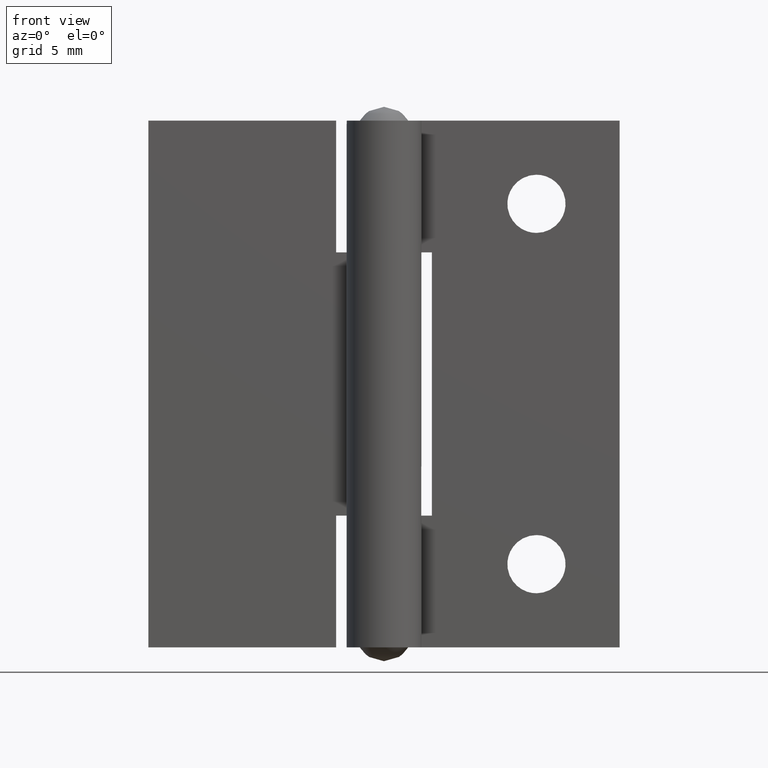
[diagram: clean part render]
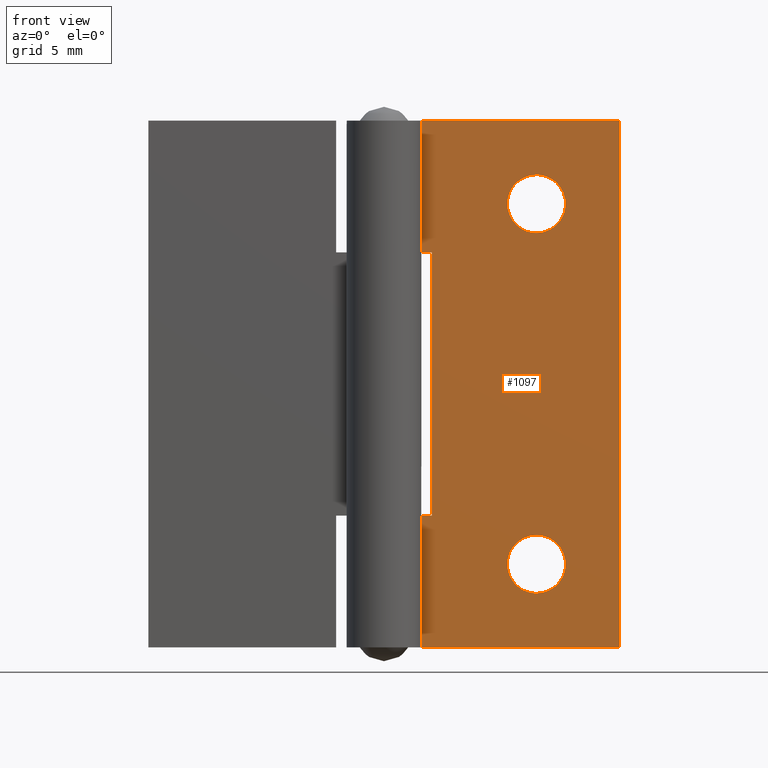
[diagram: same view with one face highlighted and labeled with its STEP entity id]
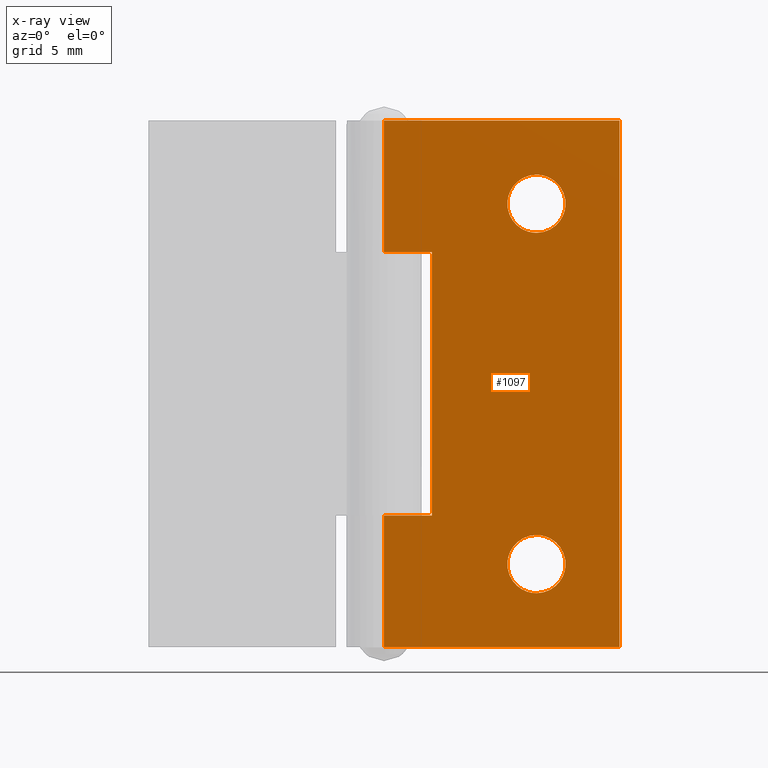
[diagram: x-ray of the same camera — body ghosted, the highlighted face saturated]
A machine part, front view. The second image highlights one B-rep face of the part: STEP entity #1097.
The next image is the same camera in x-ray: the body ghosted, the highlighted face saturated — about 0% of this face is hidden behind the body in this view.
In plain terms, the highlighted face is a freeform B-spline surface patch.
Its self-contained STEP definition (entity closure, byte-faithful):
#486=CARTESIAN_POINT('',(11.0,1.499998999999974,34.100000000000001));
#487=VERTEX_POINT('',#486);
#488=CARTESIAN_POINT('',(8.906473599163061,1.499998999999974,32.164764101061877));
#489=VERTEX_POINT('',#488);
#490=CARTESIAN_POINT('',(11.0,1.499998999999974,34.100000000000001));
#491=CARTESIAN_POINT('',(9.058779967548835,1.499998999999974,34.100000000000001));
#492=CARTESIAN_POINT('',(8.906473599163061,1.499998999999974,32.164764101061884));
#500=(BOUNDED_CURVE()B_SPLINE_CURVE(2,(#490,#491,#492),.UNSPECIFIED.,.F.,.U.)B_SPLINE_CURVE_WITH_KNOTS((3,3),(0.0,0.236331300630032),.UNSPECIFIED.)CURVE()GEOMETRIC_REPRESENTATION_ITEM()RATIONAL_B_SPLINE_CURVE((1.0,0.723120658608401,0.969723356166107))REPRESENTATION_ITEM(''));
#501=EDGE_CURVE('',#487,#489,#500,.T.);
#542=CARTESIAN_POINT('',(13.093526400836939,1.499998999999974,31.835235898938119));
#543=VERTEX_POINT('',#542);
#549=CARTESIAN_POINT('',(13.093526400836936,1.499998999999974,31.835235898938123));
#550=CARTESIAN_POINT('',(13.100000000000003,1.499998999999975,31.917490775267119));
#551=CARTESIAN_POINT('',(13.100000000000000,1.499998999999974,32.0));
#552=CARTESIAN_POINT('',(13.100000000000001,1.499998999999974,34.099999999999994));
#553=CARTESIAN_POINT('',(11.0,1.499998999999974,34.100000000000001));
#561=(BOUNDED_CURVE()B_SPLINE_CURVE(2,(#549,#550,#551,#552,#553),.UNSPECIFIED.,.F.,.U.)B_SPLINE_CURVE_WITH_KNOTS((3,2,3),(0.736331300630032,0.750000000000000,1.0),.UNSPECIFIED.)CURVE()GEOMETRIC_REPRESENTATION_ITEM()RATIONAL_B_SPLINE_CURVE((0.969723356166108,0.983986122578146,1.0,0.707106781186548,1.0))REPRESENTATION_ITEM(''));
#562=EDGE_CURVE('',#543,#487,#561,.T.);
#585=CARTESIAN_POINT('',(11.0,1.499998999999974,29.899999999999999));
#586=VERTEX_POINT('',#585);
#587=CARTESIAN_POINT('',(8.906473599163061,1.499998999999974,32.164764101061884));
#588=CARTESIAN_POINT('',(8.900000000000000,1.499998999999974,32.082509224732888));
#589=CARTESIAN_POINT('',(8.900000000000000,1.499998999999974,32.0));
#590=CARTESIAN_POINT('',(8.900000000000000,1.499998999999974,29.900000000000009));
#591=CARTESIAN_POINT('',(11.0,1.499998999999974,29.899999999999999));
#599=(BOUNDED_CURVE()B_SPLINE_CURVE(2,(#587,#588,#589,#590,#591),.UNSPECIFIED.,.F.,.U.)B_SPLINE_CURVE_WITH_KNOTS((3,2,3),(0.236331300630032,0.250000000000000,0.500000000000000),.UNSPECIFIED.)CURVE()GEOMETRIC_REPRESENTATION_ITEM()RATIONAL_B_SPLINE_CURVE((0.969723356166107,0.983986122578146,1.0,0.707106781186548,1.0))REPRESENTATION_ITEM(''));
#600=EDGE_CURVE('',#489,#586,#599,.T.);
#602=CARTESIAN_POINT('',(11.0,1.499998999999974,29.899999999999999));
#603=CARTESIAN_POINT('',(12.941220032451167,1.499998999999974,29.900000000000009));
#604=CARTESIAN_POINT('',(13.093526400836945,1.499998999999974,31.835235898938127));
#612=(BOUNDED_CURVE()B_SPLINE_CURVE(2,(#602,#603,#604),.UNSPECIFIED.,.F.,.U.)B_SPLINE_CURVE_WITH_KNOTS((3,3),(0.500000000000000,0.736331300630032),.UNSPECIFIED.)CURVE()GEOMETRIC_REPRESENTATION_ITEM()RATIONAL_B_SPLINE_CURVE((1.0,0.723120658608401,0.969723356166108))REPRESENTATION_ITEM(''));
#613=EDGE_CURVE('',#586,#543,#612,.T.);
#668=CARTESIAN_POINT('',(11.0,1.499998999999974,8.100000000000000));
#669=VERTEX_POINT('',#668);
#670=CARTESIAN_POINT('',(8.906473599163061,1.499998999999974,6.164764101061880));
#671=VERTEX_POINT('',#670);
#672=CARTESIAN_POINT('',(11.0,1.499998999999974,8.100000000000000));
#673=CARTESIAN_POINT('',(9.058779967548837,1.499998999999974,8.100000000000000));
#674=CARTESIAN_POINT('',(8.906473599163059,1.499998999999974,6.164764101061879));
#682=(BOUNDED_CURVE()B_SPLINE_CURVE(2,(#672,#673,#674),.UNSPECIFIED.,.F.,.U.)B_SPLINE_CURVE_WITH_KNOTS((3,3),(0.0,0.236331300630032),.UNSPECIFIED.)CURVE()GEOMETRIC_REPRESENTATION_ITEM()RATIONAL_B_SPLINE_CURVE((1.0,0.723120658608401,0.969723356166107))REPRESENTATION_ITEM(''));
#683=EDGE_CURVE('',#669,#671,#682,.T.);
#724=CARTESIAN_POINT('',(13.093526400836939,1.499998999999974,5.835235898938121));
#725=VERTEX_POINT('',#724);
#731=CARTESIAN_POINT('',(13.093526400836941,1.499998999999974,5.835235898938121));
#732=CARTESIAN_POINT('',(13.100000000000005,1.499998999999974,5.917490775267114));
#733=CARTESIAN_POINT('',(13.100000000000000,1.499998999999974,6.0));
#734=CARTESIAN_POINT('',(13.100000000000001,1.499998999999974,8.100000000000000));
#735=CARTESIAN_POINT('',(11.0,1.499998999999974,8.100000000000000));
#743=(BOUNDED_CURVE()B_SPLINE_CURVE(2,(#731,#732,#733,#734,#735),.UNSPECIFIED.,.F.,.U.)B_SPLINE_CURVE_WITH_KNOTS((3,2,3),(0.736331300630032,0.750000000000000,1.0),.UNSPECIFIED.)CURVE()GEOMETRIC_REPRESENTATION_ITEM()RATIONAL_B_SPLINE_CURVE((0.969723356166107,0.983986122578146,1.0,0.707106781186548,1.0))REPRESENTATION_ITEM(''));
#744=EDGE_CURVE('',#725,#669,#743,.T.);
#767=CARTESIAN_POINT('',(11.0,1.499998999999974,3.900000000000000));
#768=VERTEX_POINT('',#767);
#769=CARTESIAN_POINT('',(8.906473599163059,1.499998999999974,6.164764101061880));
#770=CARTESIAN_POINT('',(8.900000000000000,1.499998999999974,6.082509224732887));
#771=CARTESIAN_POINT('',(8.900000000000000,1.499998999999974,6.0));
#772=CARTESIAN_POINT('',(8.900000000000000,1.499998999999974,3.900000000000001));
#773=CARTESIAN_POINT('',(11.0,1.499998999999974,3.900000000000000));
#781=(BOUNDED_CURVE()B_SPLINE_CURVE(2,(#769,#770,#771,#772,#773),.UNSPECIFIED.,.F.,.U.)B_SPLINE_CURVE_WITH_KNOTS((3,2,3),(0.236331300630032,0.250000000000000,0.500000000000000),.UNSPECIFIED.)CURVE()GEOMETRIC_REPRESENTATION_ITEM()RATIONAL_B_SPLINE_CURVE((0.969723356166107,0.983986122578146,1.0,0.707106781186548,1.0))REPRESENTATION_ITEM(''));
#782=EDGE_CURVE('',#671,#768,#781,.T.);
#784=CARTESIAN_POINT('',(11.0,1.499998999999974,3.900000000000000));
#785=CARTESIAN_POINT('',(12.941220032451163,1.499998999999974,3.900000000000000));
#786=CARTESIAN_POINT('',(13.093526400836941,1.499998999999974,5.835235898938121));
#794=(BOUNDED_CURVE()B_SPLINE_CURVE(2,(#784,#785,#786),.UNSPECIFIED.,.F.,.U.)B_SPLINE_CURVE_WITH_KNOTS((3,3),(0.500000000000000,0.736331300630032),.UNSPECIFIED.)CURVE()GEOMETRIC_REPRESENTATION_ITEM()RATIONAL_B_SPLINE_CURVE((1.0,0.723120658608401,0.969723356166107))REPRESENTATION_ITEM(''));
#795=EDGE_CURVE('',#768,#725,#794,.T.);
#856=CARTESIAN_POINT('',(-0.001732050530013,1.499998999999986,9.500000000000000));
#857=VERTEX_POINT('',#856);
#895=CARTESIAN_POINT('',(-0.001732050530013,1.499998999999986,0.0));
#896=VERTEX_POINT('',#895);
#928=CARTESIAN_POINT('',(-0.001732050530013,1.499998999999986,9.500000000000000));
#929=CARTESIAN_POINT('',(-0.001732050530013,1.499998999999986,0.0));
#930=QUASI_UNIFORM_CURVE('',1,(#928,#929),.UNSPECIFIED.,.F.,.U.);
#931=EDGE_CURVE('',#857,#896,#930,.T.);
#958=CARTESIAN_POINT('',(-0.001732050530013,1.499998999999986,28.500000000000000));
#959=VERTEX_POINT('',#958);
#991=CARTESIAN_POINT('',(-0.001732050530013,1.499998999999986,38.0));
#992=VERTEX_POINT('',#991);
#993=CARTESIAN_POINT('',(-0.001732050530013,1.499998999999986,38.0));
#994=CARTESIAN_POINT('',(-0.001732050530013,1.499998999999986,28.500000000000000));
#995=QUASI_UNIFORM_CURVE('',1,(#993,#994),.UNSPECIFIED.,.F.,.U.);
#996=EDGE_CURVE('',#992,#959,#995,.T.);
#1038=CARTESIAN_POINT('',(-0.850968533501330,1.499999000000000,-1.898099926348625));
#1039=CARTESIAN_POINT('',(17.849236938993300,1.499999000000000,-1.898099926348625));
#1040=CARTESIAN_POINT('',(-0.850968533501330,1.499999000000000,39.898100945588048));
#1041=CARTESIAN_POINT('',(17.849236938993300,1.499999000000000,39.898100945588048));
#1042=B_SPLINE_SURFACE_WITH_KNOTS('',1,1,((#1038,#1040),(#1039,#1041)),.UNSPECIFIED.,.F.,.F.,.U.,(2,2),(2,2),(0.0,18.700205472494630),(0.0,41.796200871936684),.UNSPECIFIED.);
#1043=ORIENTED_EDGE('',*,*,#996,.T.);
#1044=CARTESIAN_POINT('',(3.450000000000000,1.499998999999974,28.500000000000000));
#1045=VERTEX_POINT('',#1044);
#1046=CARTESIAN_POINT('',(-0.001732050530013,1.499998999999986,28.500000000000000));
#1047=CARTESIAN_POINT('',(3.450000000000000,1.499998999999974,28.500000000000000));
#1048=QUASI_UNIFORM_CURVE('',1,(#1046,#1047),.UNSPECIFIED.,.F.,.U.);
#1049=EDGE_CURVE('',#959,#1045,#1048,.T.);
#1050=ORIENTED_EDGE('',*,*,#1049,.T.);
#1051=CARTESIAN_POINT('',(3.450000000000000,1.499998999999974,9.500000000000000));
#1052=VERTEX_POINT('',#1051);
#1053=CARTESIAN_POINT('',(3.450000000000000,1.499998999999974,28.500000000000000));
#1054=CARTESIAN_POINT('',(3.450000000000000,1.499998999999974,9.500000000000000));
#1055=QUASI_UNIFORM_CURVE('',1,(#1053,#1054),.UNSPECIFIED.,.F.,.U.);
#1056=EDGE_CURVE('',#1045,#1052,#1055,.T.);
#1057=ORIENTED_EDGE('',*,*,#1056,.T.);
#1058=CARTESIAN_POINT('',(3.450000000000000,1.499998999999974,9.500000000000000));
#1059=CARTESIAN_POINT('',(-0.001732050530013,1.499998999999986,9.500000000000000));
#1060=QUASI_UNIFORM_CURVE('',1,(#1058,#1059),.UNSPECIFIED.,.F.,.U.);
#1061=EDGE_CURVE('',#1052,#857,#1060,.T.);
#1062=ORIENTED_EDGE('',*,*,#1061,.T.);
#1063=ORIENTED_EDGE('',*,*,#931,.T.);
#1064=CARTESIAN_POINT('',(17.0,1.499999000000000,0.0));
#1065=VERTEX_POINT('',#1064);
#1066=CARTESIAN_POINT('',(17.0,1.499999000000000,0.0));
#1067=CARTESIAN_POINT('',(-0.001732050530013,1.499998999999986,0.0));
#1068=QUASI_UNIFORM_CURVE('',1,(#1066,#1067),.UNSPECIFIED.,.F.,.U.);
#1069=EDGE_CURVE('',#1065,#896,#1068,.T.);
#1070=ORIENTED_EDGE('',*,*,#1069,.F.);
#1071=CARTESIAN_POINT('',(17.0,1.499999000000000,38.0));
#1072=VERTEX_POINT('',#1071);
#1073=CARTESIAN_POINT('',(17.0,1.499999000000000,38.0));
#1074=CARTESIAN_POINT('',(17.0,1.499999000000000,0.0));
#1075=QUASI_UNIFORM_CURVE('',1,(#1073,#1074),.UNSPECIFIED.,.F.,.U.);
#1076=EDGE_CURVE('',#1072,#1065,#1075,.T.);
#1077=ORIENTED_EDGE('',*,*,#1076,.F.);
#1078=CARTESIAN_POINT('',(17.0,1.499999000000000,38.0));
#1079=CARTESIAN_POINT('',(-0.001732050530013,1.499998999999986,38.0));
#1080=QUASI_UNIFORM_CURVE('',1,(#1078,#1079),.UNSPECIFIED.,.F.,.U.);
#1081=EDGE_CURVE('',#1072,#992,#1080,.T.);
#1082=ORIENTED_EDGE('',*,*,#1081,.T.);
#1083=EDGE_LOOP('',(#1043,#1050,#1057,#1062,#1063,#1070,#1077,#1082));
#1084=FACE_OUTER_BOUND('',#1083,.T.);
#1085=ORIENTED_EDGE('',*,*,#795,.F.);
#1086=ORIENTED_EDGE('',*,*,#782,.F.);
#1087=ORIENTED_EDGE('',*,*,#683,.F.);
#1088=ORIENTED_EDGE('',*,*,#744,.F.);
#1089=EDGE_LOOP('',(#1085,#1086,#1087,#1088));
#1090=FACE_BOUND('',#1089,.T.);
#1091=ORIENTED_EDGE('',*,*,#613,.F.);
#1092=ORIENTED_EDGE('',*,*,#600,.F.);
#1093=ORIENTED_EDGE('',*,*,#501,.F.);
#1094=ORIENTED_EDGE('',*,*,#562,.F.);
#1095=EDGE_LOOP('',(#1091,#1092,#1093,#1094));
#1096=FACE_BOUND('',#1095,.T.);
#1097=ADVANCED_FACE('',(#1084,#1090,#1096),#1042,.T.);